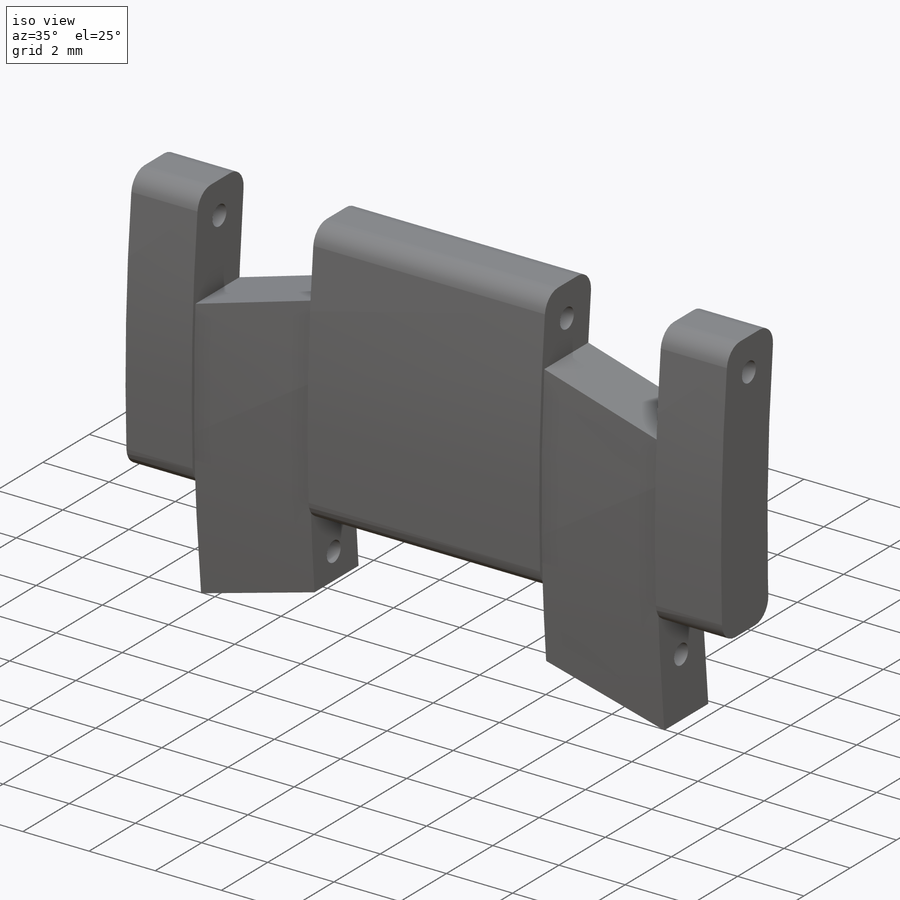
[diagram: iso view]
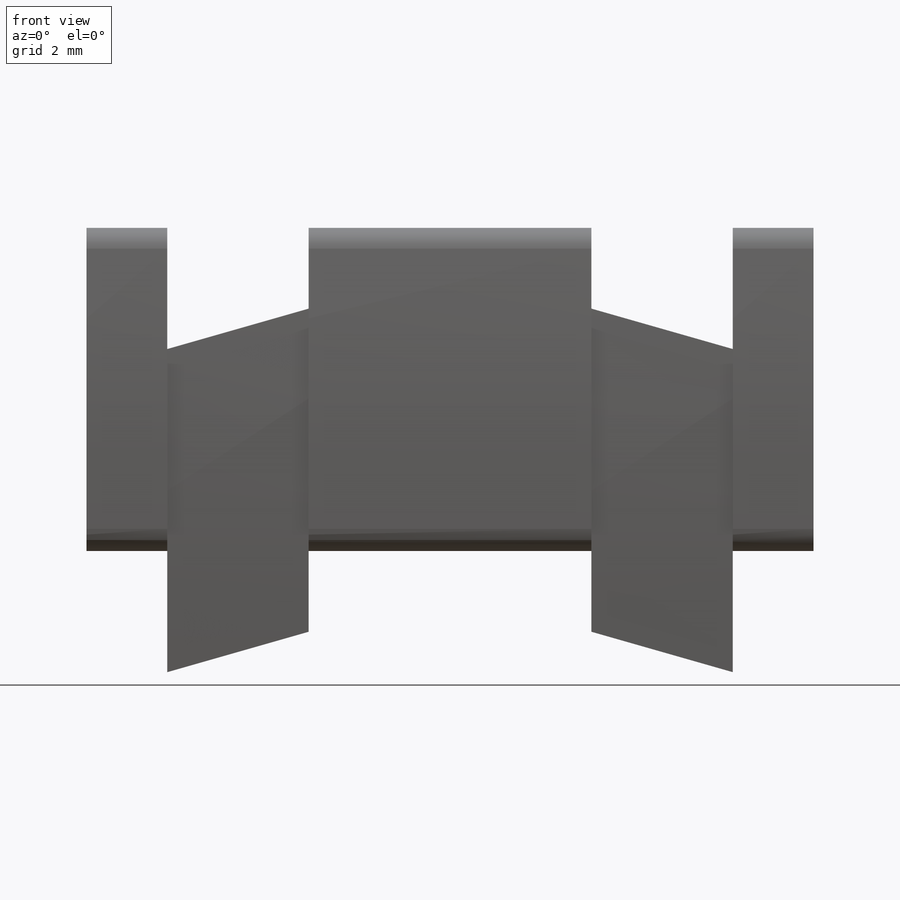
[diagram: front view]
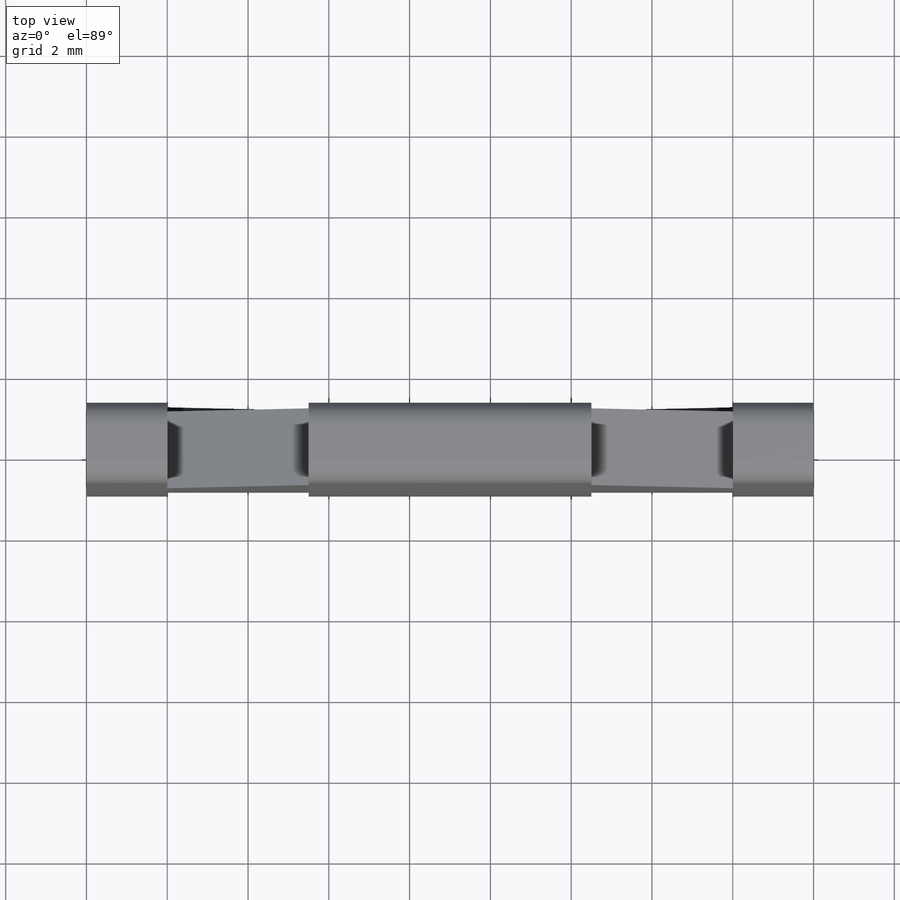
[diagram: top view]
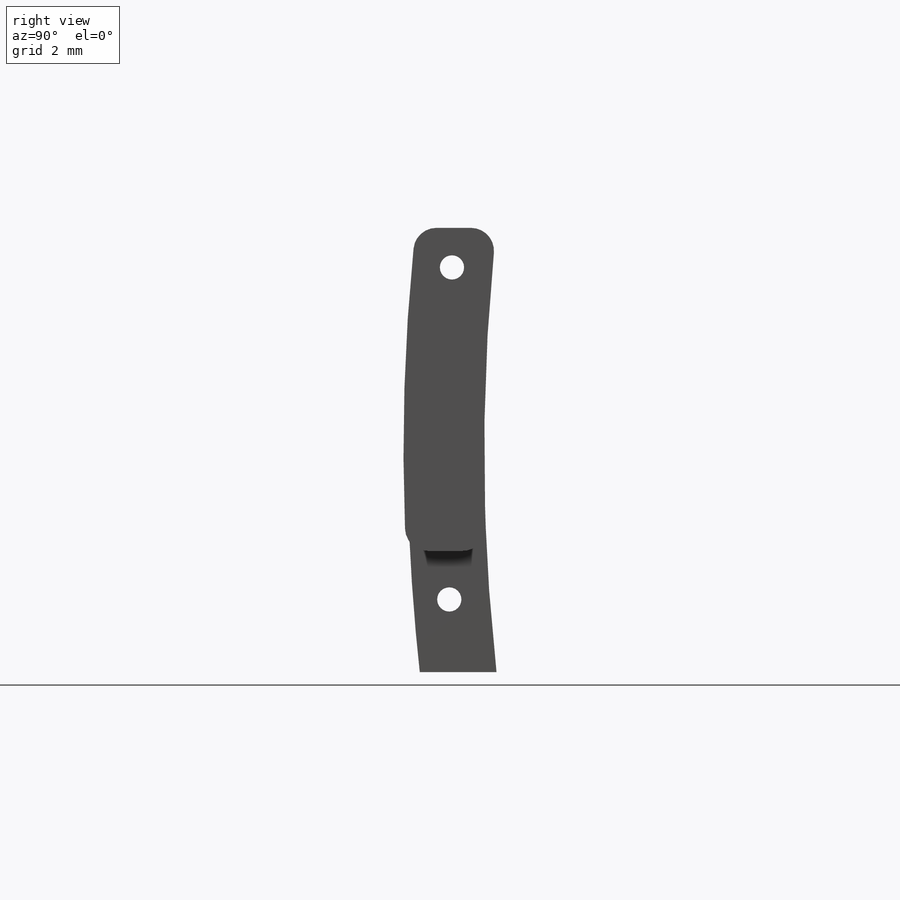
[diagram: right view]
SOLIDWORKS PART (.sldprt)
format: sldprt  version: not decoded by parser v0  size: 589,824 bytes
history: native  units: mm
features: sketch x7, cut_extrude x5, extrude x2, material x1, plane x1, fillet x1 (+15 scaffold rows collapsed)
feature tree (32):
  scaffold x15  (default folders/planes/origin — collapsed)
  material  "Material <not specified>"
  sketch  "Sketch1"  dims[D1=2.0mm D2=3.5mm D3=7.0mm D4=3.5mm D5=2.0mm D6=2.0mm D7=3.5mm D8=7.0mm D9=3.5mm D10=2.0mm D11=3.0mm D12=2.0mm D13=2.0mm D14=3.0mm D15=3.0mm D16=2.0mm D17=3.0mm D18=8.0mm]
  extrude  "Boss-Extrude2"  Depth=5mm
  sketch  "Sketch8"  dims[D1=2.5mm D2=49.0mm]
  cut_extrude  "Cut-Extrude6"  Depth=20mm
  sketch  "Sketch9"  dims[D1=2.5mm D2=47.1mm]
  cut_extrude  "Cut-Extrude7"  Depth=20mm
  plane  "Plane1"  Offset=4mm
  sketch  "Sketch11"
  extrude  "Boss-Extrude4"  Depth=2mm
  sketch  "Sketch12"  dims[D1=2.5mm D2=47.0mm]
  cut_extrude  "Cut-Extrude8"  Depth=20mm
  sketch  "Sketch13"  dims[c1.D1=~0.320611mm c1.D3=0.5mm c2.D1=0.98mm c2.D2=51.0mm]
  cut_extrude  "Cut-Extrude10"  [1 undecoded]
  sketch  "Sketch14"  dims[c1.D1=~0.449379mm c1.D3=0.5mm c2.D1=1.8mm c2.D2=51.0mm]
  cut_extrude  "Cut-Extrude11"  Depth=20mm
  fillet  "Fillet1"  Radius=0.57mm
decode coverage: 13 of 15 modeling features carry decoded parameters
note: ~ marks probable driven/reference dimensions
note: 1 parameter value undecoded
note: suppression state not decoded; provenance and decode notes live in map.json
